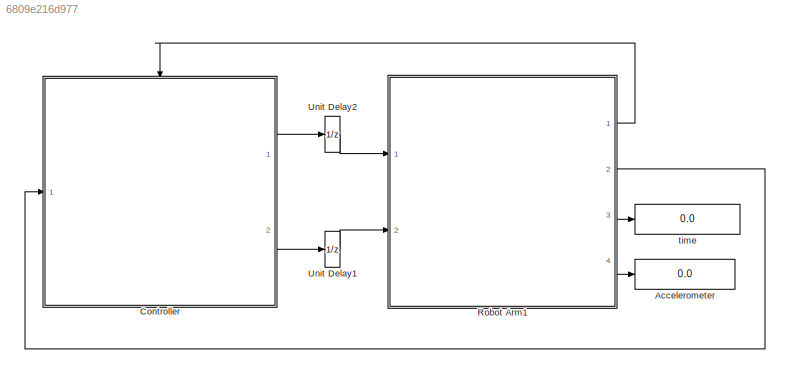
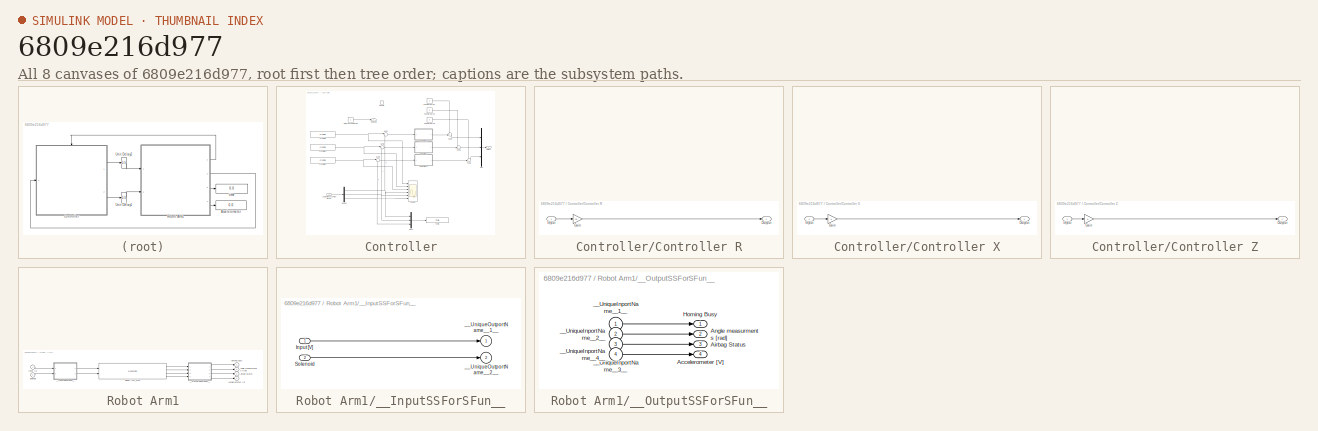
[diagram: thumbnail index - all 8 canvases of the model, root first then tree order]
MODEL slx_6809e216d977
KIND model
CONFIG AbsTol = auto
CONFIG FixedStep = 1/(1024*4)
CONFIG MaxStep = auto
CONFIG MinStep = auto
CONFIG RelTol = 1e-3
CONFIG SampleTimeConstraint = Unconstrained
CONFIG Solver = ode1
CONFIG SolverMode = Auto
CONFIG SolverName = ode1
CONFIG StartTime = 0.0
CONFIG StopTime = 120
BLOCK [Display] Accelerometer
  Decimation = 50
  Ports = [1]
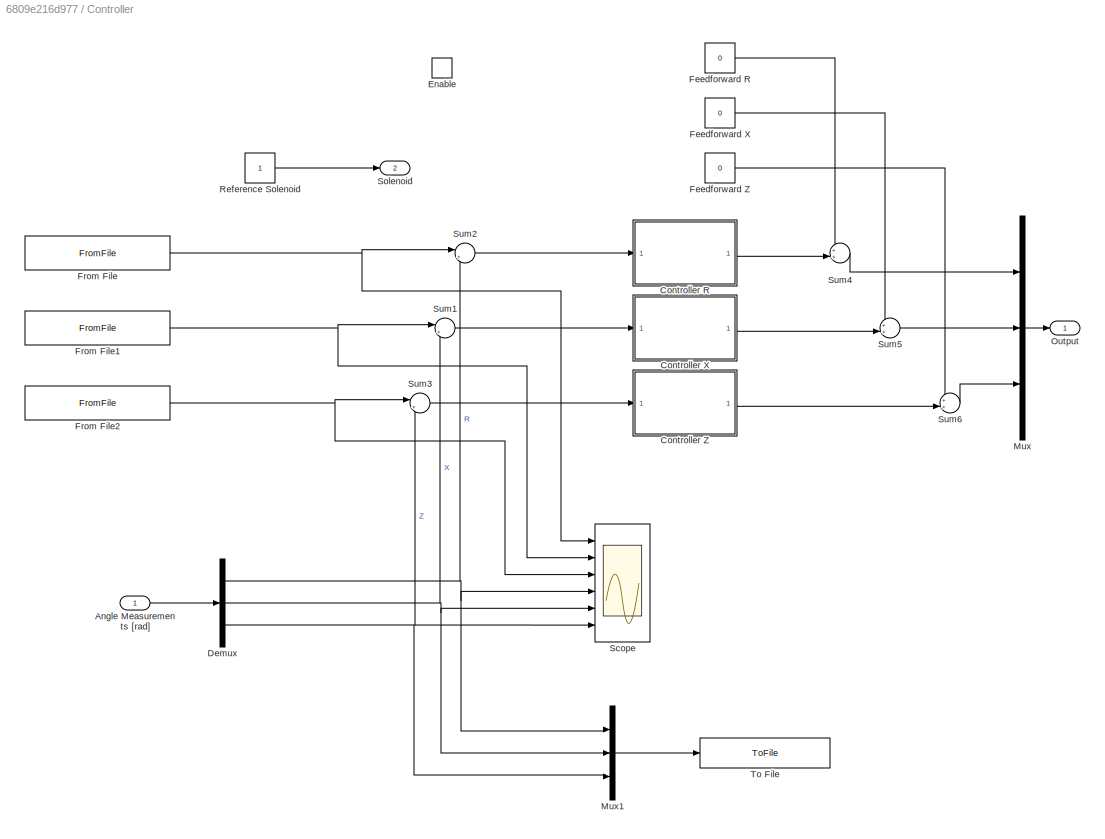
BLOCK [SubSystem] Controller
  Ports = [1, 2, 1]
  RequestExecContextInheritance = off
BLOCK [Inport] Controller/Angle Measurements [rad]
BLOCK [SubSystem] Controller/Controller R
  Ports = [1, 1]
  RequestExecContextInheritance = off
BLOCK [Gain] Controller/Controller R/Gain
  Gain = 10
BLOCK [Inport] Controller/Controller R/Input
BLOCK [Outport] Controller/Controller R/Output
BLOCK [SubSystem] Controller/Controller X
  Ports = [1, 1]
  RequestExecContextInheritance = off
BLOCK [Gain] Controller/Controller X/Gain
BLOCK [Inport] Controller/Controller X/Input
BLOCK [Outport] Controller/Controller X/Output
BLOCK [SubSystem] Controller/Controller Z
  Ports = [1, 1]
  RequestExecContextInheritance = off
BLOCK [Gain] Controller/Controller Z/Gain
BLOCK [Inport] Controller/Controller Z/Input
BLOCK [Outport] Controller/Controller Z/Output
BLOCK [Demux] Controller/Demux
  Outputs = 3
  Ports = [1, 3]
BLOCK [EnablePort] Controller/Enable
  Ports = []
BLOCK [Constant] Controller/Feedforward R
  Value = 0
BLOCK [Constant] Controller/Feedforward X
  Value = 0
BLOCK [Constant] Controller/Feedforward Z
  Value = 0
BLOCK [FromFile] Controller/From File
  FileName = reference_WN_R.mat
  SampleTime = 0
BLOCK [FromFile] Controller/From File1
  FileName = reference_WN_X.mat
  SampleTime = 0
BLOCK [FromFile] Controller/From File2
  FileName = reference_WN_Z.mat
  SampleTime = 0
BLOCK [Mux] Controller/Mux
  DisplayOption = bar
  Inputs = 3
  Ports = [3, 1]
BLOCK [Mux] Controller/Mux1
  DisplayOption = bar
  Inputs = 3
  Ports = [3, 1]
BLOCK [Outport] Controller/Output
BLOCK [Constant] Controller/Reference Solenoid
BLOCK [Scope] Controller/Scope
  Floating = off
  NumInputPorts = 6
  Ports = [6]
  ScopeSpecificationString = Simulink.scopes.TimeScopeBlockCfg('CurrentConfiguration', extmgr.ConfigurationSet(extmgr.Configuration('Core','General UI',true),extmgr.Configuration('Core','Source UI',true),extmgr.Configuration('Sources','WiredSimulink',true),extmgr.Configuration('Visuals','Time Domain',true,'SerializedDisplays',{struct('MinYLimReal','-0.1422','MaxYLimReal','0.60967','YLabelReal','','MinYLimMag','0.00000','MaxYL...<+1425ch>
BLOCK [Outport] Controller/Solenoid
  InitialOutput = 0
  Port = 2
BLOCK [Sum] Controller/Sum1
  Inputs = |+-
  Ports = [2, 1]
BLOCK [Sum] Controller/Sum2
  Inputs = |+-
  Ports = [2, 1]
BLOCK [Sum] Controller/Sum3
  Inputs = |+-
  Ports = [2, 1]
BLOCK [Sum] Controller/Sum4
  InputSameDT = on
  Inputs = ++|
  OutDataTypeStr = Inherit: Same as first input
  Ports = [2, 1]
  SaturateOnIntegerOverflow = on
BLOCK [Sum] Controller/Sum5
  InputSameDT = on
  Inputs = ++|
  OutDataTypeStr = Inherit: Same as first input
  Ports = [2, 1]
  SaturateOnIntegerOverflow = on
BLOCK [Sum] Controller/Sum6
  InputSameDT = on
  Inputs = ++|
  OutDataTypeStr = Inherit: Same as first input
  Ports = [2, 1]
  SaturateOnIntegerOverflow = on
BLOCK [ToFile] Controller/To File
  Filename = SSA8_AI_1139.mat
  Ports = [1]
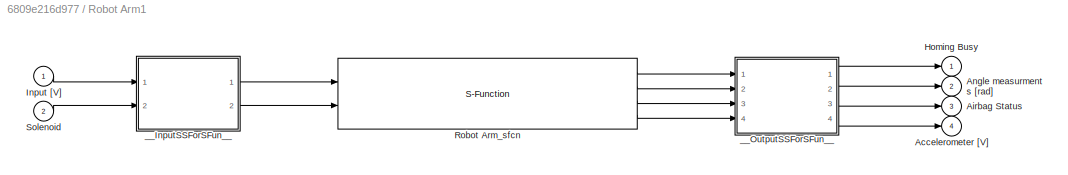
BLOCK [SubSystem] Robot Arm1
  Ports = [2, 4]
  RequestExecContextInheritance = off
BLOCK [Outport] Robot Arm1/Accelerometer [V]
  Port = 4
BLOCK [Outport] Robot Arm1/Airbag Status
  Port = 3
BLOCK [Outport] Robot Arm1/Angle measurments [rad]
  Port = 2
BLOCK [Outport] Robot Arm1/Homing Busy
BLOCK [Inport] Robot Arm1/Input [V]
BLOCK [S-Function] Robot Arm1/Robot Arm_sfcn
  CopyFcn = if ~strcmp(get_param(gcb,'Linkstatus'),'none') && ...\n~strcmp(get_param(gcb,'Linkstatus'),'implicit')      \n  set_param(gcb,'LinkStatus','none');                \nend
  EnableBusSupport = off
  FunctionName = Robot_sf
  Ports = [2, 4]
  SFunctionDeploymentMode = off
  SFunctionModules = dlowpass2 dnotch dpd dweakint ec_Ebox ec_EboxResetEnc
BLOCK [Inport] Robot Arm1/Solenoid
  Port = 2
BLOCK [SubSystem] Robot Arm1/__InputSSForSFun__
  PermitHierarchicalResolution = ExplicitOnly
  Ports = [2, 2]
  RequestExecContextInheritance = off
BLOCK [Inport] Robot Arm1/__InputSSForSFun__/Input [V]
BLOCK [Inport] Robot Arm1/__InputSSForSFun__/Solenoid
  Port = 2
BLOCK [Outport] Robot Arm1/__InputSSForSFun__/__UniqueOutportName__1__
BLOCK [Outport] Robot Arm1/__InputSSForSFun__/__UniqueOutportName__2__
  Port = 2
BLOCK [SubSystem] Robot Arm1/__OutputSSForSFun__
  PermitHierarchicalResolution = ExplicitOnly
  Ports = [4, 4]
  RequestExecContextInheritance = off
BLOCK [Outport] Robot Arm1/__OutputSSForSFun__/Accelerometer [V]
  Port = 4
BLOCK [Outport] Robot Arm1/__OutputSSForSFun__/Airbag Status
  Port = 3
BLOCK [Outport] Robot Arm1/__OutputSSForSFun__/Angle measurments [rad]
  Port = 2
BLOCK [Outport] Robot Arm1/__OutputSSForSFun__/Homing Busy
BLOCK [Inport] Robot Arm1/__OutputSSForSFun__/__UniqueInportName__1__
BLOCK [Inport] Robot Arm1/__OutputSSForSFun__/__UniqueInportName__2__
  Port = 2
BLOCK [Inport] Robot Arm1/__OutputSSForSFun__/__UniqueInportName__3__
  Port = 3
BLOCK [Inport] Robot Arm1/__OutputSSForSFun__/__UniqueInportName__4__
  Port = 4
BLOCK [UnitDelay] Unit Delay1
  HasFrameUpgradeWarning = on
  SampleTime = -1
BLOCK [UnitDelay] Unit Delay2
  HasFrameUpgradeWarning = on
  SampleTime = -1
BLOCK [Display] time
  Decimation = 50
  Ports = [1]
LINE Controller/Angle Measurements [rad]:1 -> Controller/Demux:1
LINE Controller/Controller R/Gain:1 -> Controller/Controller R/Output:1
LINE Controller/Controller R/Input:1 -> Controller/Controller R/Gain:1
LINE Controller/Controller R:1 -> Controller/Sum4:2
LINE Controller/Controller X/Gain:1 -> Controller/Controller X/Output:1
LINE Controller/Controller X/Input:1 -> Controller/Controller X/Gain:1
LINE Controller/Controller X:1 -> Controller/Sum5:2
LINE Controller/Controller Z/Gain:1 -> Controller/Controller Z/Output:1
LINE Controller/Controller Z/Input:1 -> Controller/Controller Z/Gain:1
LINE Controller/Controller Z:1 -> Controller/Sum6:2
NET Controller/Demux:1 -> Controller/Mux1:1, Controller/Scope:4, Controller/Sum2:2
NET Controller/Demux:2 -> Controller/Mux1:2, Controller/Scope:5, Controller/Sum1:2
NET Controller/Demux:3 -> Controller/Mux1:3, Controller/Scope:6, Controller/Sum3:2
LINE Controller/Feedforward R:1 -> Controller/Sum4:1
LINE Controller/Feedforward X:1 -> Controller/Sum5:1
LINE Controller/Feedforward Z:1 -> Controller/Sum6:1
NET Controller/From File1:1 -> Controller/Scope:2, Controller/Sum1:1
NET Controller/From File2:1 -> Controller/Scope:3, Controller/Sum3:1
NET Controller/From File:1 -> Controller/Scope:1, Controller/Sum2:1
LINE Controller/Mux1:1 -> Controller/To File:1
LINE Controller/Mux:1 -> Controller/Output:1
LINE Controller/Reference Solenoid:1 -> Controller/Solenoid:1
LINE Controller/Sum1:1 -> Controller/Controller X:1
LINE Controller/Sum2:1 -> Controller/Controller R:1
LINE Controller/Sum3:1 -> Controller/Controller Z:1
LINE Controller/Sum4:1 -> Controller/Mux:1
LINE Controller/Sum5:1 -> Controller/Mux:2
LINE Controller/Sum6:1 -> Controller/Mux:3
LINE Controller:1 -> Unit Delay2:1
LINE Controller:2 -> Unit Delay1:1
LINE Robot Arm1/Input [V]:1 -> Robot Arm1/__InputSSForSFun__:1
LINE Robot Arm1/Robot Arm_sfcn:1 -> Robot Arm1/__OutputSSForSFun__:1
LINE Robot Arm1/Robot Arm_sfcn:2 -> Robot Arm1/__OutputSSForSFun__:2
LINE Robot Arm1/Robot Arm_sfcn:3 -> Robot Arm1/__OutputSSForSFun__:3
LINE Robot Arm1/Robot Arm_sfcn:4 -> Robot Arm1/__OutputSSForSFun__:4
LINE Robot Arm1/Solenoid:1 -> Robot Arm1/__InputSSForSFun__:2
LINE Robot Arm1/__InputSSForSFun__/Input [V]:1 -> Robot Arm1/__InputSSForSFun__/__UniqueOutportName__1__:1
LINE Robot Arm1/__InputSSForSFun__/Solenoid:1 -> Robot Arm1/__InputSSForSFun__/__UniqueOutportName__2__:1
LINE Robot Arm1/__InputSSForSFun__:1 -> Robot Arm1/Robot Arm_sfcn:1
LINE Robot Arm1/__InputSSForSFun__:2 -> Robot Arm1/Robot Arm_sfcn:2
LINE Robot Arm1/__OutputSSForSFun__/__UniqueInportName__1__:1 -> Robot Arm1/__OutputSSForSFun__/Homing Busy:1
LINE Robot Arm1/__OutputSSForSFun__/__UniqueInportName__2__:1 -> Robot Arm1/__OutputSSForSFun__/Angle measurments [rad]:1
LINE Robot Arm1/__OutputSSForSFun__/__UniqueInportName__3__:1 -> Robot Arm1/__OutputSSForSFun__/Airbag Status:1
LINE Robot Arm1/__OutputSSForSFun__/__UniqueInportName__4__:1 -> Robot Arm1/__OutputSSForSFun__/Accelerometer [V]:1
LINE Robot Arm1/__OutputSSForSFun__:1 -> Robot Arm1/Homing Busy:1
LINE Robot Arm1/__OutputSSForSFun__:2 -> Robot Arm1/Angle measurments [rad]:1
LINE Robot Arm1/__OutputSSForSFun__:3 -> Robot Arm1/Airbag Status:1
LINE Robot Arm1/__OutputSSForSFun__:4 -> Robot Arm1/Accelerometer [V]:1
LINE Robot Arm1:1 -> Controller:enable
LINE Robot Arm1:2 -> Controller:1
LINE Robot Arm1:3 -> time:1
LINE Robot Arm1:4 -> Accelerometer:1
LINE Unit Delay1:1 -> Robot Arm1:2
LINE Unit Delay2:1 -> Robot Arm1:1
note: NET lines group one-source signal fan-out (src -> all destinations, sorted); 1:1 wires keep LINE
